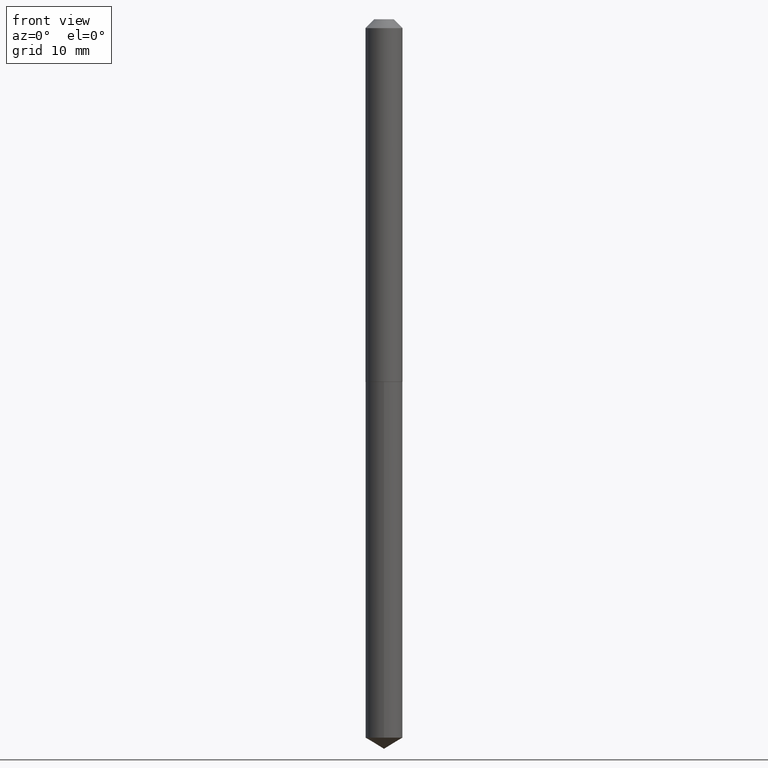
[diagram: clean part render]
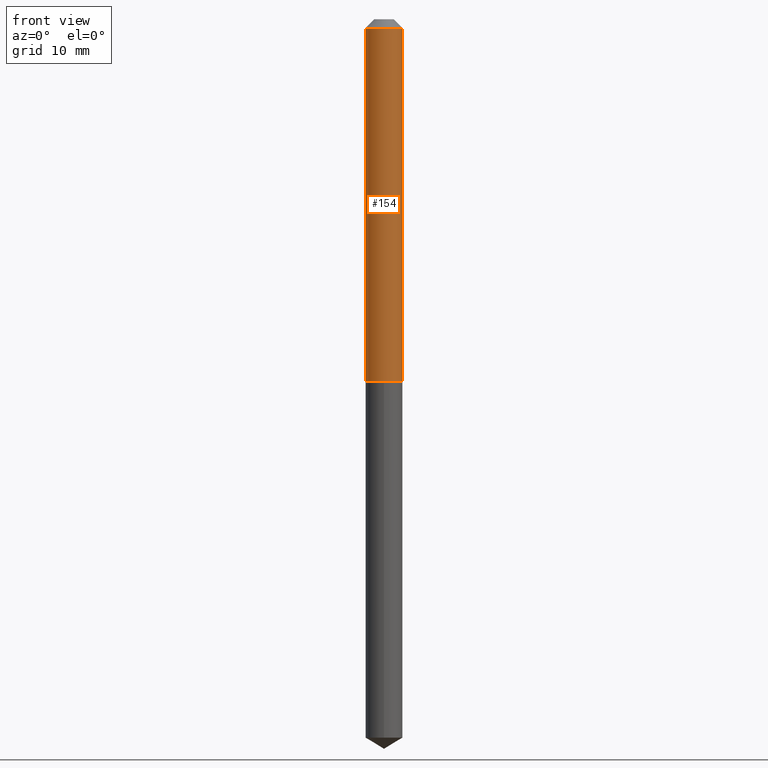
[diagram: same view with one face highlighted and labeled with its STEP entity id]
A machine part, front view. The second image highlights one B-rep face of the part: STEP entity #154.
In plain terms, the highlighted cylindrical surface (edge-blend (fillet) strip) has radius 1.6497 mm, axis along (-0, 0, 1).
Its self-contained STEP definition (entity closure, byte-faithful):
#17 = DIRECTION ( 'NONE',  ( -2.445468806185136597E-29, 3.491481338843145583E-15, 1.000000000000000000 ) ) ;
#38 = VERTEX_POINT ( 'NONE', #114 ) ;
#42 = FACE_OUTER_BOUND ( 'NONE', #313, .T. ) ;
#49 = EDGE_CURVE ( 'NONE', #369, #332, #142, .T. ) ;
#80 = CARTESIAN_POINT ( 'NONE',  ( -0.06495000000000007712, 4.614975068761856187E-16, -3.194848341120565109E-30 ) ) ;
#85 = AXIS2_PLACEMENT_3D ( 'NONE', #204, #327, #269 ) ;
#114 = CARTESIAN_POINT ( 'NONE',  ( -0.06495000000000014651, -3.976873571061221069E-15, -1.271200000000000108 ) ) ;
#130 = ORIENTED_EDGE ( 'NONE', *, *, #49, .F. ) ;
#139 = DIRECTION ( 'NONE',  ( -2.445468806185136877E-29, 3.491481338843145188E-15, 1.000000000000000000 ) ) ;
#142 = CIRCLE ( 'NONE', #85, 0.06494999999999999385 ) ;
#154 = ADVANCED_FACE ( 'NONE', ( #42 ), #282, .T. ) ;
#158 = CARTESIAN_POINT ( 'NONE',  ( 0.000000000000000000, 0.000000000000000000, 0.000000000000000000 ) ) ;
#186 = CARTESIAN_POINT ( 'NONE',  ( 0.06495000000000014651, -4.891914503853131360E-15, -1.271200000000000108 ) ) ;
#196 = VECTOR ( 'NONE', #255, 39.37007874015748143 ) ;
#204 = CARTESIAN_POINT ( 'NONE',  ( 7.642090019328601786E-31, -1.091087918388490144E-16, -0.03125000000000020123 ) ) ;
#208 = CIRCLE ( 'NONE', #278, 0.06495000000000014651 ) ;
#220 = ORIENTED_EDGE ( 'NONE', *, *, #293, .F. ) ;
#226 = CARTESIAN_POINT ( 'NONE',  ( -0.06494999999999999385, -1.812242428011941536E-15, -0.03125000000000020123 ) ) ;
#228 = LINE ( 'NONE', #80, #301 ) ;
#253 = VERTEX_POINT ( 'NONE', #186 ) ;
#255 = DIRECTION ( 'NONE',  ( -2.445468806185136877E-29, 3.491481338843145188E-15, 1.000000000000000000 ) ) ;
#258 = AXIS2_PLACEMENT_3D ( 'NONE', #158, #17, #276 ) ;
#262 = DIRECTION ( 'NONE',  ( 1.000000000000000000, -6.982962677686267499E-15, 0.000000000000000000 ) ) ;
#269 = DIRECTION ( 'NONE',  ( 1.000000000000000000, -6.982962677686265133E-15, 0.000000000000000000 ) ) ;
#276 = DIRECTION ( 'NONE',  ( 1.000000000000000000, -6.982962677686265922E-15, 4.876176775795935793E-29 ) ) ;
#278 = AXIS2_PLACEMENT_3D ( 'NONE', #377, #379, #262 ) ;
#282 = CYLINDRICAL_SURFACE ( 'NONE', #258, 0.06495000000000007712 ) ;
#284 = LINE ( 'NONE', #322, #196 ) ;
#286 = ORIENTED_EDGE ( 'NONE', *, *, #318, .T. ) ;
#290 = CARTESIAN_POINT ( 'NONE',  ( 0.06494999999999999385, -5.626522177545718995E-16, -0.03125000000000020123 ) ) ;
#293 = EDGE_CURVE ( 'NONE', #38, #369, #228, .T. ) ;
#301 = VECTOR ( 'NONE', #139, 39.37007874015748143 ) ;
#313 = EDGE_LOOP ( 'NONE', ( #220, #286, #354, #130 ) ) ;
#318 = EDGE_CURVE ( 'NONE', #38, #253, #208, .T. ) ;
#322 = CARTESIAN_POINT ( 'NONE',  ( 0.06495000000000007712, -4.535434259157234891E-16, 3.167076815879463918E-30 ) ) ;
#327 = DIRECTION ( 'NONE',  ( -2.445468806185136597E-29, 3.491481338843145583E-15, 1.000000000000000000 ) ) ;
#332 = VERTEX_POINT ( 'NONE', #290 ) ;
#354 = ORIENTED_EDGE ( 'NONE', *, *, #388, .T. ) ;
#369 = VERTEX_POINT ( 'NONE', #226 ) ;
#377 = CARTESIAN_POINT ( 'NONE',  ( 3.108679946422545888E-29, -4.438371077937407378E-15, -1.271200000000000108 ) ) ;
#379 = DIRECTION ( 'NONE',  ( -2.445468806185136597E-29, 3.491481338843145583E-15, 1.000000000000000000 ) ) ;
#388 = EDGE_CURVE ( 'NONE', #253, #332, #284, .T. ) ;